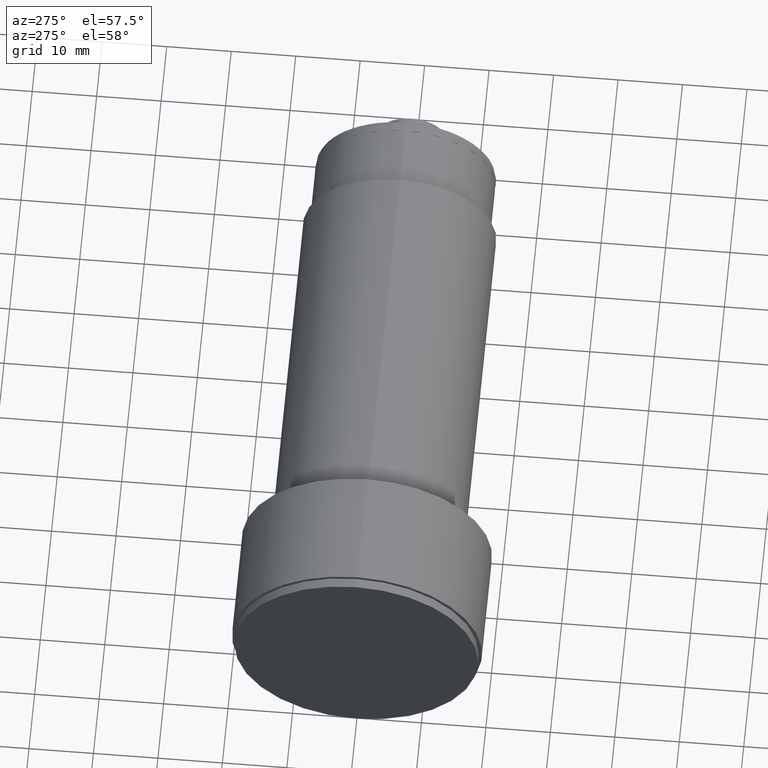
[diagram: clean part render]
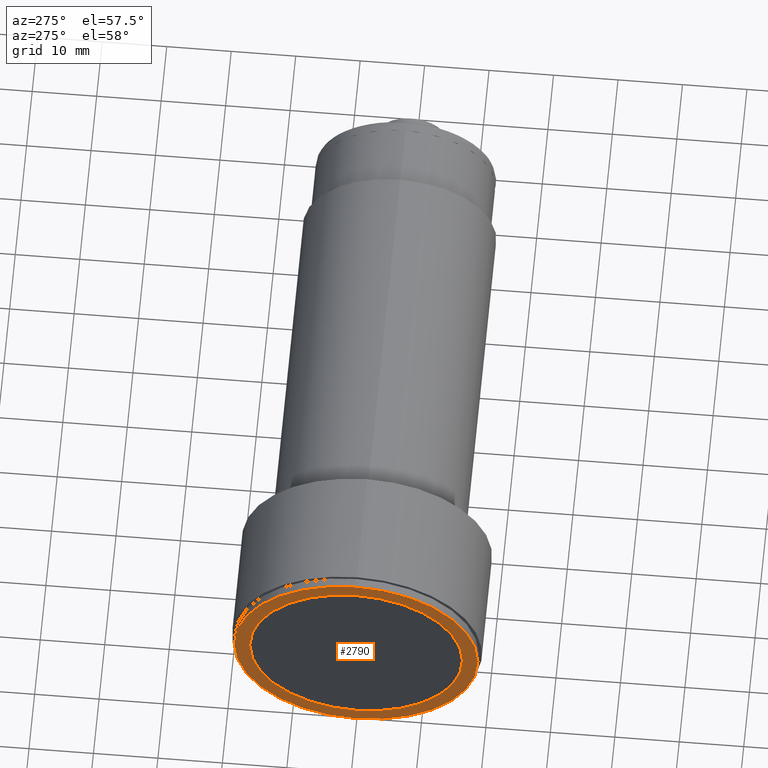
[diagram: same view with one face highlighted and labeled with its STEP entity id]
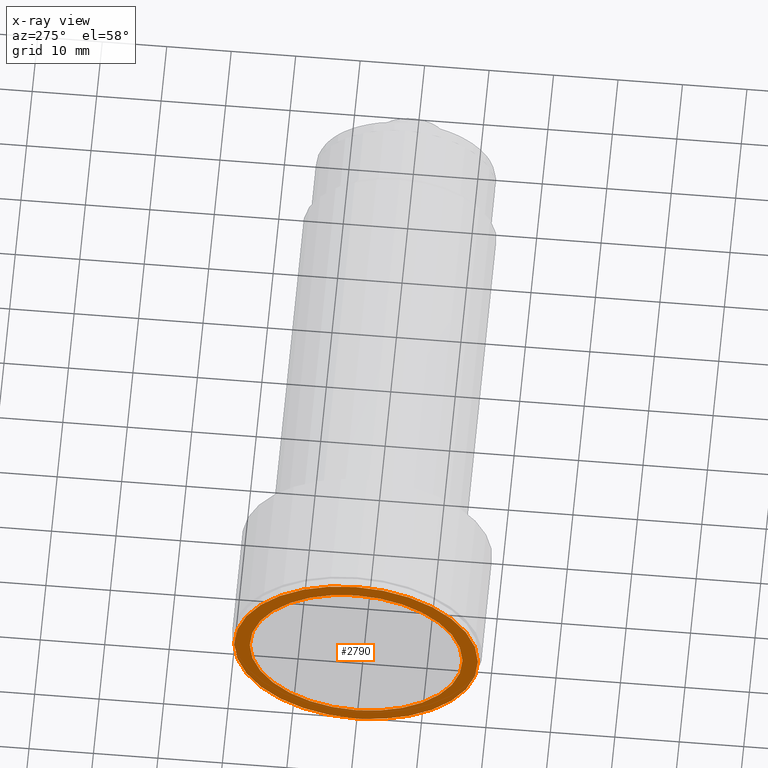
[diagram: x-ray of the same camera — body ghosted, the highlighted face saturated]
A machine part, auxiliary view. The second image highlights one B-rep face of the part: STEP entity #2790.
The next image is the same camera in x-ray: the body ghosted, the highlighted face saturated — about 0% of this face is hidden behind the body in this view.
In plain terms, the highlighted planar face has unit normal (-1, 0, 0).
Its self-contained STEP definition (entity closure, byte-faithful):
#173 = DIRECTION ( 'NONE',  ( 0.0000000000000000000, 0.0000000000000000000, -1.000000000000000000 ) ) ;
#345 = FACE_BOUND ( 'NONE', #1931, .T. ) ;
#366 = ORIENTED_EDGE ( 'NONE', *, *, #4555, .F. ) ;
#668 = VERTEX_POINT ( 'NONE', #1856 ) ;
#702 = CARTESIAN_POINT ( 'NONE',  ( -0.05905511811023622700, -6.556435184794253000E-018, 3.278217592397122300E-018 ) ) ;
#709 = ORIENTED_EDGE ( 'NONE', *, *, #941, .T. ) ;
#867 = DIRECTION ( 'NONE',  ( 0.0000000000000000000, 0.0000000000000000000, -1.000000000000000000 ) ) ;
#941 = EDGE_CURVE ( 'NONE', #668, #3222, #4500, .T. ) ;
#1052 = VERTEX_POINT ( 'NONE', #4121 ) ;
#1320 = ORIENTED_EDGE ( 'NONE', *, *, #4397, .F. ) ;
#1326 = CIRCLE ( 'NONE', #1487, 0.7440944881889763900 ) ;
#1487 = AXIS2_PLACEMENT_3D ( 'NONE', #4305, #3186, #867 ) ;
#1587 = FACE_OUTER_BOUND ( 'NONE', #4652, .T. ) ;
#1630 = CARTESIAN_POINT ( 'NONE',  ( -0.05905511811023622700, -6.556435184794253000E-018, -0.7440944881889763900 ) ) ;
#1797 = AXIS2_PLACEMENT_3D ( 'NONE', #702, #1816, #4587 ) ;
#1815 = CARTESIAN_POINT ( 'NONE',  ( -0.05905511811023622700, -6.556435184794253000E-018, 3.278217592397122300E-018 ) ) ;
#1816 = DIRECTION ( 'NONE',  ( -1.000000000000000000, 0.0000000000000000000, 0.0000000000000000000 ) ) ;
#1821 = AXIS2_PLACEMENT_3D ( 'NONE', #2050, #2137, #3350 ) ;
#1856 = CARTESIAN_POINT ( 'NONE',  ( -0.05905511811023622700, -6.556435184794253000E-018, -0.6496062992125984900 ) ) ;
#1931 = EDGE_LOOP ( 'NONE', ( #709, #4118 ) ) ;
#2050 = CARTESIAN_POINT ( 'NONE',  ( -0.05905511811023622700, -6.556435184794253000E-018, 3.278217592397122300E-018 ) ) ;
#2135 = DIRECTION ( 'NONE',  ( 1.000000000000000000, -0.0000000000000000000, -0.0000000000000000000 ) ) ;
#2137 = DIRECTION ( 'NONE',  ( 1.000000000000000000, -0.0000000000000000000, -0.0000000000000000000 ) ) ;
#2530 = DIRECTION ( 'NONE',  ( 0.0000000000000000000, 0.0000000000000000000, -1.000000000000000000 ) ) ;
#2790 = ADVANCED_FACE ( 'NONE', ( #1587, #345 ), #3001, .T. ) ;
#2829 = CARTESIAN_POINT ( 'NONE',  ( -0.05905511811023622700, 7.299739231887240000E-017, 0.6496062992125984900 ) ) ;
#2875 = AXIS2_PLACEMENT_3D ( 'NONE', #4080, #3308, #173 ) ;
#3001 = PLANE ( 'NONE',  #1797 ) ;
#3079 = AXIS2_PLACEMENT_3D ( 'NONE', #1815, #2135, #2530 ) ;
#3186 = DIRECTION ( 'NONE',  ( 1.000000000000000000, -0.0000000000000000000, -0.0000000000000000000 ) ) ;
#3206 = VERTEX_POINT ( 'NONE', #1630 ) ;
#3222 = VERTEX_POINT ( 'NONE', #2829 ) ;
#3308 = DIRECTION ( 'NONE',  ( 1.000000000000000000, -0.0000000000000000000, -0.0000000000000000000 ) ) ;
#3350 = DIRECTION ( 'NONE',  ( 0.0000000000000000000, 0.0000000000000000000, -1.000000000000000000 ) ) ;
#3443 = EDGE_CURVE ( 'NONE', #3222, #668, #4347, .T. ) ;
#4080 = CARTESIAN_POINT ( 'NONE',  ( -0.05905511811023622700, -6.556435184794253000E-018, 3.278217592397122300E-018 ) ) ;
#4118 = ORIENTED_EDGE ( 'NONE', *, *, #3443, .T. ) ;
#4121 = CARTESIAN_POINT ( 'NONE',  ( -0.05905511811023622700, 8.456885813758755300E-017, 0.7440944881889763900 ) ) ;
#4305 = CARTESIAN_POINT ( 'NONE',  ( -0.05905511811023622700, -6.556435184794253000E-018, 3.278217592397122300E-018 ) ) ;
#4347 = CIRCLE ( 'NONE', #2875, 0.6496062992125984900 ) ;
#4397 = EDGE_CURVE ( 'NONE', #1052, #3206, #1326, .T. ) ;
#4500 = CIRCLE ( 'NONE', #1821, 0.6496062992125984900 ) ;
#4555 = EDGE_CURVE ( 'NONE', #3206, #1052, #4824, .T. ) ;
#4587 = DIRECTION ( 'NONE',  ( 0.0000000000000000000, 0.0000000000000000000, 1.000000000000000000 ) ) ;
#4652 = EDGE_LOOP ( 'NONE', ( #366, #1320 ) ) ;
#4824 = CIRCLE ( 'NONE', #3079, 0.7440944881889763900 ) ;